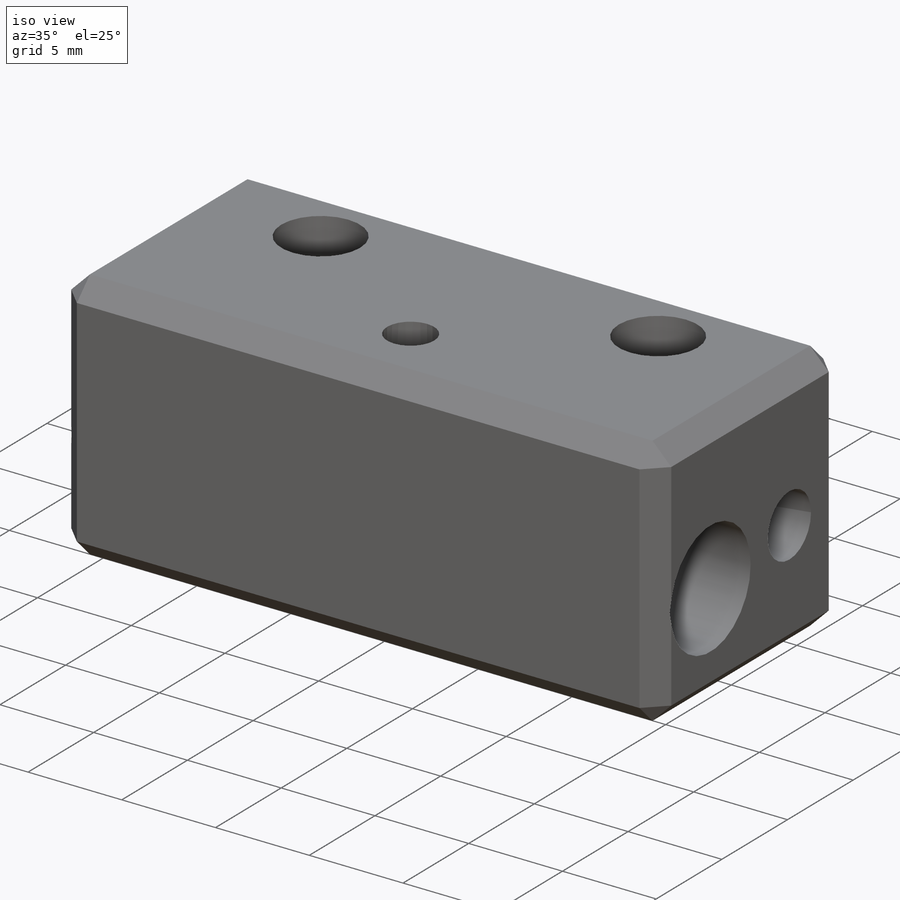
[diagram: iso view]
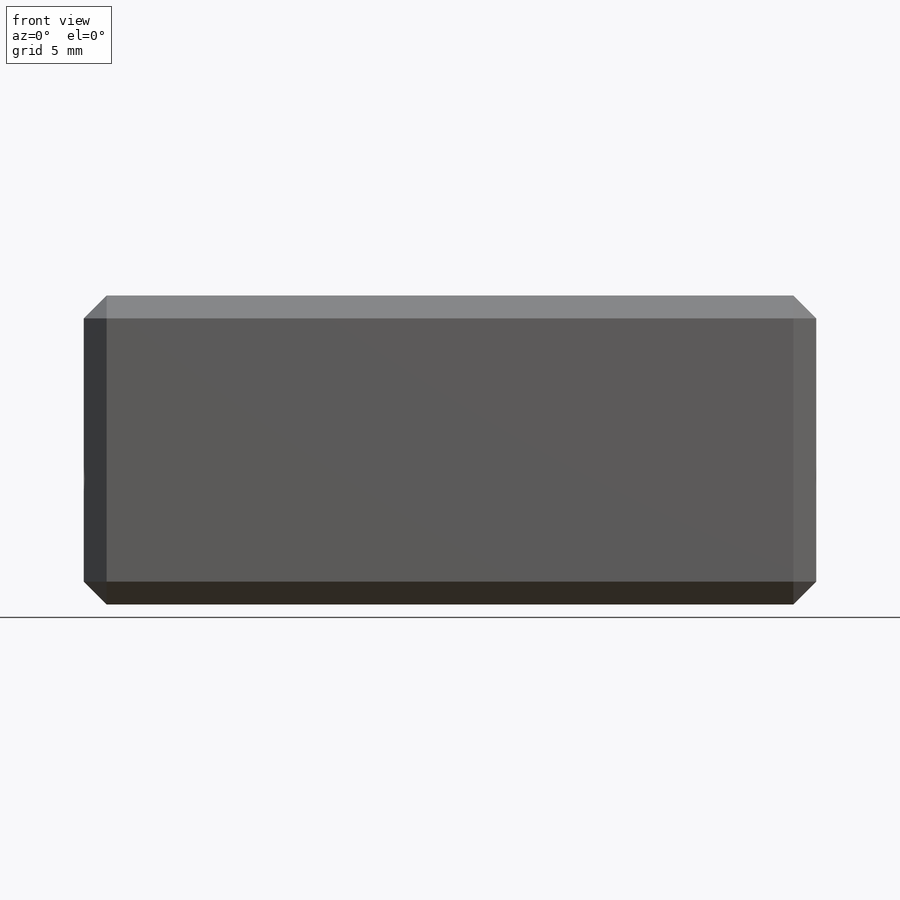
[diagram: front view]
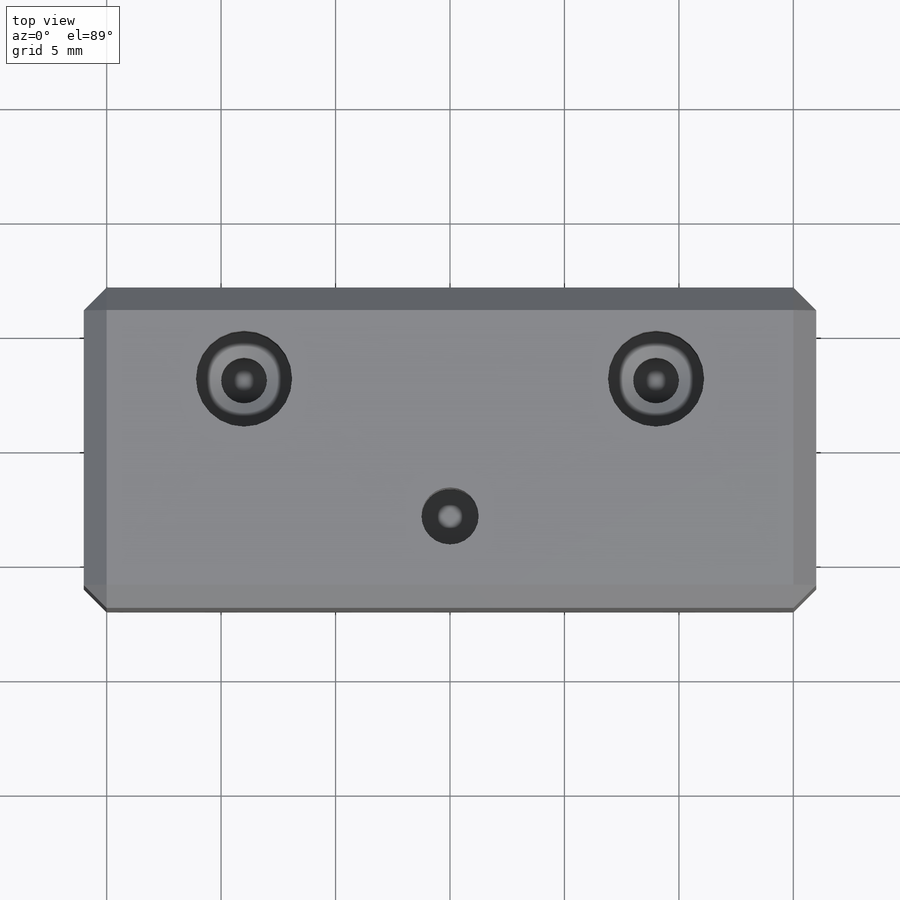
[diagram: top view]
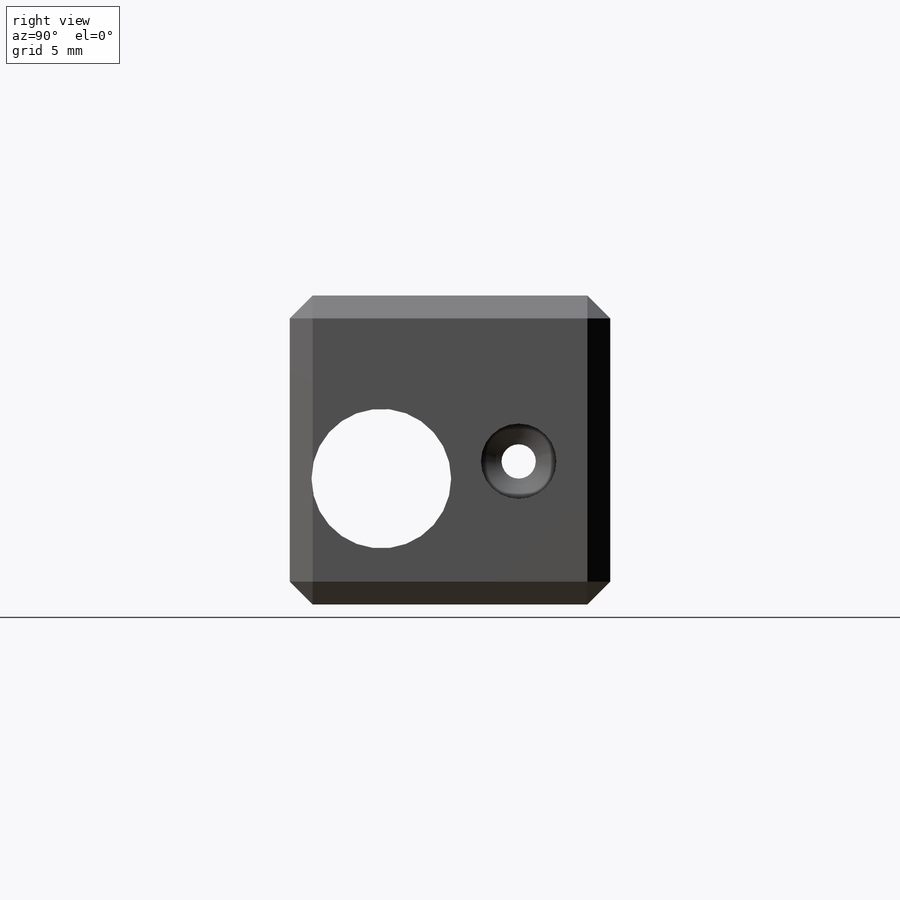
[diagram: right view]
SOLIDWORKS PART (.sldprt)
format: sldprt  version: not decoded by parser v0  size: 575,488 bytes
history: native  units: mm
features: sketch x22, hole x9, thread x7, cut_extrude x2, material x1, extrude x1, chamfer x1, plane x1, cut_revolve x1 (+12 scaffold rows collapsed)
feature tree (57):
  scaffold x12  (default folders/planes/origin — collapsed)
  material  "AISI 304"
  sketch  "Sketch1"  dims[c1.D1=~41.026128mm c1.D2=~42.60134mm c2.D1=13.5mm c2.D2=14.0mm]
  extrude  "Boss-Extrude1"  Depth=32mm
  hole  "M5x0.8 Tapped Hole2"  Diameter=4.2mm Depth=4mm
  sketch  "Sketch6"  dims[D1=18.0mm D2=4.0mm]
  sketch  "Sketch5"  dims[hole-wizard template sketch: 47 standard entries collapsed; hole parameters kept: c15.Tap Drill Depth=4.0mm c15.D3=~14.816244mm c15.Drill Angle=118.0deg]
  thread  "Hole Thread1"  Diameter=4mm  [1 undecoded]
  thread  "Hole Thread2"  Diameter=4mm  [1 undecoded]
  hole  "M5x0.8 Tapped Hole1"  Diameter=4.2mm Depth=4mm
  sketch  "Sketch8"  dims[D1=20.0mm]
  sketch  "Sketch7"  dims[hole-wizard template sketch: 47 standard entries collapsed; hole parameters kept: c15.Tap Drill Depth=4.0mm c15.D3=~14.816244mm c15.Drill Angle=180.0deg]
  thread  "Hole Thread3"  Diameter=4mm  [1 undecoded]
  hole  "Ø6.1 (6.1) Diameter Hole1"  Diameter=6.1mm Depth=32mm
  sketch  "Sketch10"  dims[D1=10.0mm D2=8.0mm]
  sketch  "Sketch11"  dims[hole-wizard template sketch: 59 standard entries collapsed; hole parameters kept: c18.Thru Hole Dia.=6.1mm c18.Thru Hole Depth=32.0mm]
  chamfer  "Chamfer1"  Distance=1mm Angle=45deg
  plane  "Plane1"  Offset=0.5mm
  sketch  "Sketch12"  dims[c1.D1=0.75mm c1.D2=9.0mm c2.D2=118.0deg c2.D3=11.0mm c2.D4=2.0mm c2.D5=1.0mm]
  cut_revolve  "Cut-Revolve1"  Angle=360deg
  sketch  "Sketch13"  dims[D1=1.5mm]
  cut_extrude  "Cut-Extrude1"  [1 undecoded]
  sketch  "Sketch14"  dims[D1=2.0mm]
  cut_extrude  "Cut-Extrude2"  [1 undecoded]
  hole  "M4x0.7 Tapped Hole1"  Diameter=3.3mm Depth=4mm
  sketch  "Sketch16"
  sketch  "Sketch15"  dims[hole-wizard template sketch: 47 standard entries collapsed; hole parameters kept: c15.Tap Drill Depth=4.0mm c15.D3=~14.816244mm c15.Drill Angle=118.0deg]
  thread  "Hole Thread4"  Diameter=4mm  [1 undecoded]
  hole  "M3x0.5 Tapped Hole1"  Diameter=2.5mm Depth=4.95mm
  sketch  "Sketch18"  dims[D1=10.0mm]
  sketch  "Sketch19"  dims[hole-wizard template sketch: 60 standard entries collapsed; hole parameters kept: c18.Thru Tap Drill Depth=4.95mm]
  thread  "Hole Thread5"  Diameter=3mm  [1 undecoded]
  hole  "M3x0.5 Tapped Hole2"  Diameter=2.5mm Depth=3.5mm
  sketch  "Sketch21"  dims[D1=2.8mm D2=18.6mm]
  sketch  "Sketch20"  dims[hole-wizard template sketch: 47 standard entries collapsed; hole parameters kept: c15.Tap Drill Depth=3.5mm c15.D3=~14.816244mm c15.Drill Angle=118.0deg]
  thread  "Hole Thread6"  Diameter=3.5mm  [1 undecoded]
  hole  "Ø1.5 (1.5) Diameter Hole1"  Diameter=1.5mm Depth=4.5mm
  sketch  "Sketch23"  dims[D1=5.5mm]
  sketch  "Sketch24"  dims[hole-wizard template sketch: 47 standard entries collapsed; hole parameters kept: c15.Hole Depth=4.5mm c15.D3=~14.816244mm c15.Drill Angle=118.0deg]
  hole  "Ø2.0 (2) Diameter Hole1"  Diameter=2mm Depth=2mm
  sketch  "Sketch26"
  sketch  "Sketch25"  dims[hole-wizard template sketch: 50 standard entries collapsed; hole parameters above]
  hole  "M4x0.7 Tapped Hole2"  Diameter=3.3mm Depth=4mm
  sketch  "Sketch28"
  sketch  "Sketch27"  dims[hole-wizard template sketch: 47 standard entries collapsed; hole parameters kept: c15.Tap Drill Depth=4.0mm c15.D3=~14.816244mm c15.Drill Angle=118.0deg]
  thread  "Hole Thread7"  Diameter=4mm  [1 undecoded]
decode coverage: 38 of 43 modeling features carry decoded parameters
note: ~ marks probable driven/reference dimensions
note: 9 parameter values undecoded
summary: Diameter pulled from absorbed wizard sketch
note: suppression state not decoded; provenance and decode notes live in map.json
